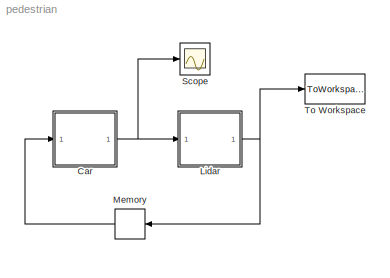
MODEL pedestrian
KIND model
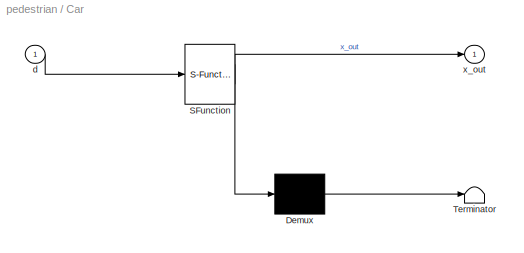
BLOCK [SubSystem] Car
  ErrorFcn = Stateflow.Translate.translate
  PermitHierarchicalResolution = ExplicitOnly
  Ports = [1, 1]
  RequestExecContextInheritance = off
  SFBlockType = Chart
  SID = 1
  TreatAsAtomicUnit = on
BLOCK [Demux] Car/ Demux 
  Outputs = 1
  Ports = [1, 1]
  SID = 1::90
BLOCK [S-Function] Car/ SFunction 
  EnableBusSupport = on
  FunctionName = sf_sfun
  PortCounts = [1 2]
  Ports = [1, 2]
  SFcnIsStateOwnerBlock = off
  SFunctionDeploymentMode = off
  SID = 1::89
  Tag = Stateflow S-Function pedestrian 3
BLOCK [Terminator] Car/ Terminator 
  SID = 1::91
BLOCK [Inport] Car/d
  IconDisplay = Port number
  SID = 1::95
BLOCK [Outport] Car/x_out
  IconDisplay = Port number
  SID = 1::96
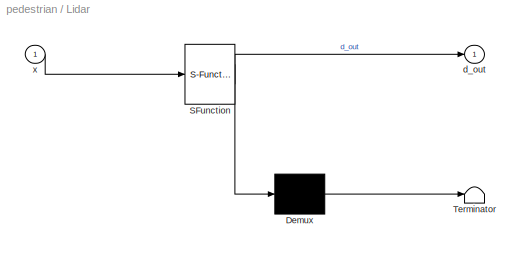
BLOCK [SubSystem] Lidar
  ErrorFcn = Stateflow.Translate.translate
  PermitHierarchicalResolution = ExplicitOnly
  Ports = [1, 1]
  RequestExecContextInheritance = off
  SFBlockType = Chart
  SID = 2
  TreatAsAtomicUnit = on
BLOCK [Demux] Lidar/ Demux 
  Outputs = 1
  Ports = [1, 1]
  SID = 2::90
BLOCK [S-Function] Lidar/ SFunction 
  EnableBusSupport = on
  FunctionName = sf_sfun
  PortCounts = [1 2]
  Ports = [1, 2]
  SFcnIsStateOwnerBlock = off
  SFunctionDeploymentMode = off
  SID = 2::89
  Tag = Stateflow S-Function pedestrian 1
BLOCK [Terminator] Lidar/ Terminator 
  SID = 2::91
BLOCK [Outport] Lidar/d_out
  IconDisplay = Port number
  SID = 2::94
BLOCK [Inport] Lidar/x
  IconDisplay = Port number
  SID = 2::93
BLOCK [Memory] Memory
  SID = 6
BLOCK [Scope] Scope
  Floating = off
  NumInputPorts = 1
  Ports = [1]
  SID = 4
  ScopeSpecificationString = Simulink.scopes.TimeScopeBlockCfg('CurrentConfiguration', extmgr.ConfigurationSet(extmgr.Configuration('Core','General UI',true),extmgr.Configuration('Core','Source UI',true),extmgr.Configuration('Sources','WiredSimulink',true),extmgr.Configuration('Visuals','Time Domain',true,'SerializedDisplays',{struct('MinYLimReal','-1.00000','MaxYLimReal','1.00000','YLabelReal','','MinYLimMag','0.00000','MaxY...<+1323ch>
BLOCK [ToWorkspace] To Workspace
  FixptAsFi = on
  MaxDataPoints = inf
  Ports = [1]
  SID = 5
  SampleTime = -1
  Save2DSignal = 3-D array (concatenate along third dimension)
  SaveFormat = Timeseries
  VariableName = simout
LINE Car/ Demux :1 -> Car/ Terminator :1
LINE Car/ SFunction :1 -> Car/ Demux :1
LINE Car/ SFunction :2 -> Car/x_out:1
LINE Car/d:1 -> Car/ SFunction :1
NET Car:1 -> Lidar:1, Scope:1
LINE Lidar/ Demux :1 -> Lidar/ Terminator :1
LINE Lidar/ SFunction :1 -> Lidar/ Demux :1
LINE Lidar/ SFunction :2 -> Lidar/d_out:1
LINE Lidar/x:1 -> Lidar/ SFunction :1
NET Lidar:1 -> Memory:1, To Workspace:1
LINE Memory:1 -> Car:1
note: NET lines group one-source signal fan-out (src -> all destinations, sorted); 1:1 wires keep LINE
CHART Lidar states=1 transitions=1
  STATE_LABEL 'LidarPhysics\\ndu:\\nd_dot = 0.2 * (x-40);\\nd_out = d;'
CHART Car states=2 transitions=2
  STATE_LABEL 'Moving\\ndu:\\nx_dot = 0.2* d;\\nx_out = x;'
  STATE_LABEL 'Stopping\\ndu:\\nx_dot = 0;\\nx_out = x;'
